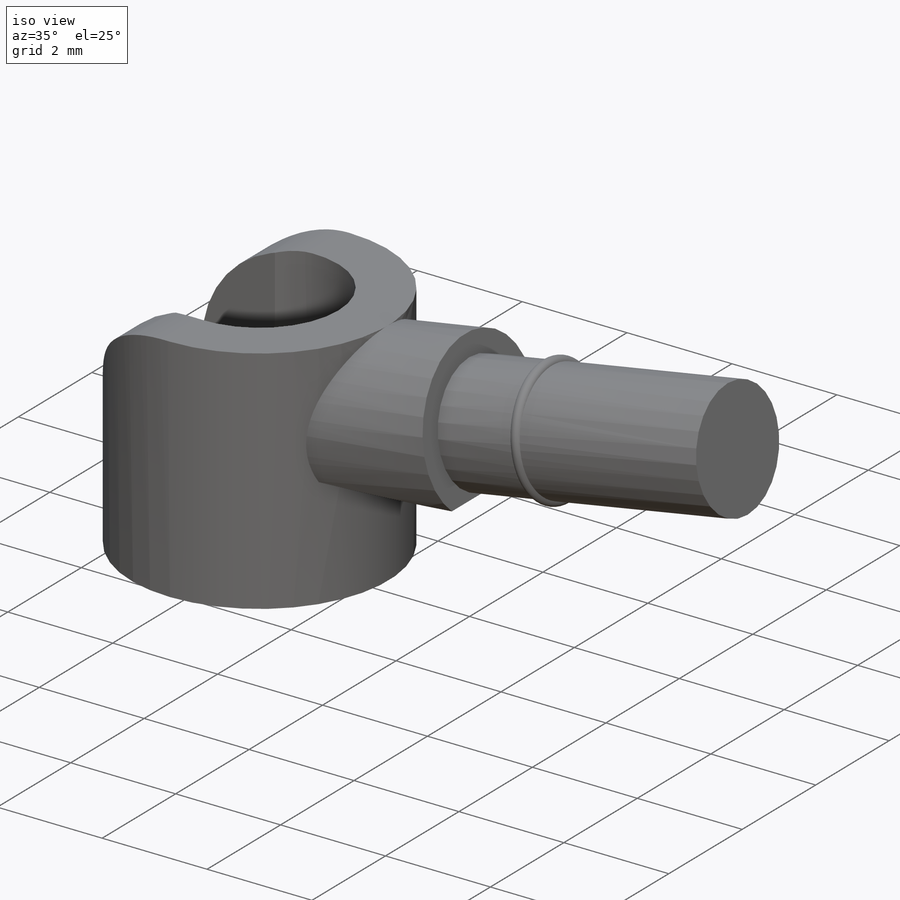
[diagram: iso view]
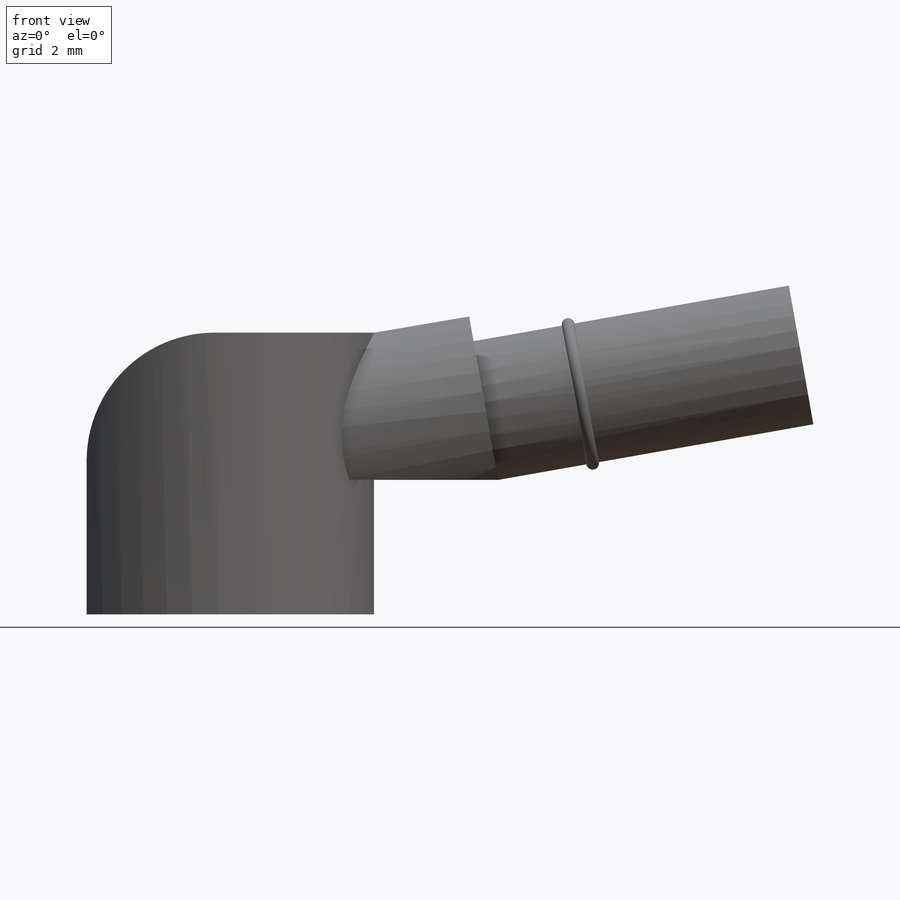
[diagram: front view]
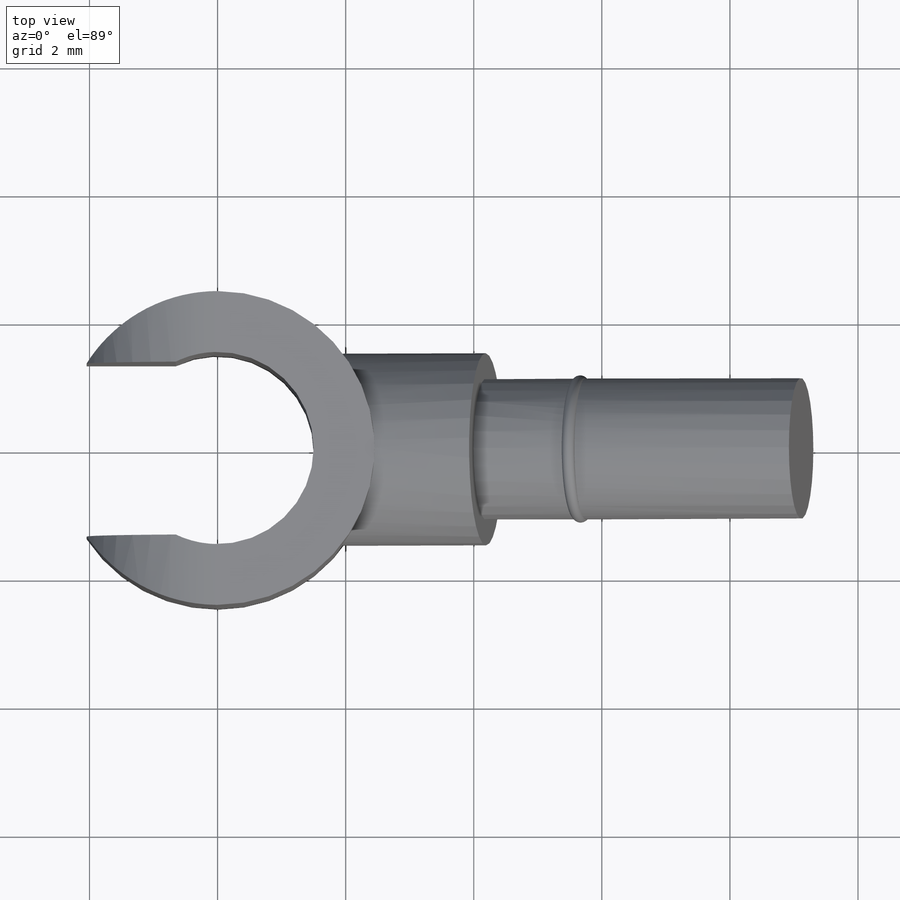
[diagram: top view]
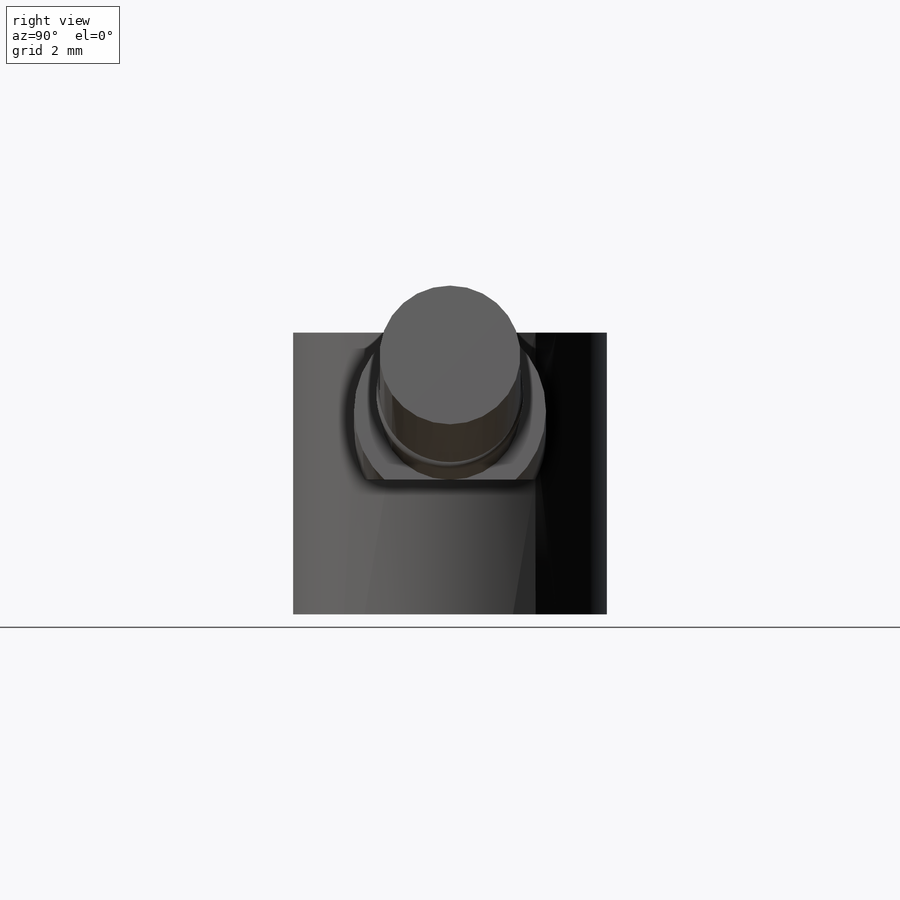
[diagram: right view]
SOLIDWORKS PART (.sldprt)
format: sldprt  version: not decoded by parser v0  size: 352,256 bytes
history: native  units: mm
features: sketch x11, cut_extrude x4, plane x4, extrude x3, material x1, sweep x1 (+11 scaffold rows collapsed)
feature tree (35):
  scaffold x11  (default folders/planes/origin — collapsed)
  material  "Material <not specified>"
  sketch  "Sketch1"  dims[D1=4.9mm]
  extrude  "Boss-Extrude1"  Depth=4.4mm
  sketch  "Sketch2"  dims[D1=3.0mm]
  sketch  "Sketch4"  dims[D1=1.35mm]
  cut_extrude  "Cut-Extrude4"  [1 undecoded]
  cut_extrude  "Cut-Extrude6"  [1 undecoded]
  sketch  "Sketch11"  dims[D1=~2.012483mm]
  cut_extrude  "Cut-Extrude7"  [1 undecoded]
  sketch  "Sketch13"  dims[c1.D1=4.84mm c2.D1=10.0deg]
  sketch  "Sketch14"  dims[c1.D1=~2.836819mm c1.D2=90.0deg c2.D1=~1.821168mm c2.D2=~1.821168mm]
  plane  "Plane1"
  plane  "Plane2"
  sketch  "Sketch15"  dims[D1=3.0mm]
  extrude  "Boss-Extrude2"  Depth=1.5mm
  sketch  "Sketch17"  dims[D1=~0.709784mm]
  extrude  "Boss-Extrude3"  Depth=5mm
  plane  "Plane3"  Offset=3mm
  sketch  "Sketch20"  dims[D1=1.15mm D2=1.15mm]
  plane  "Plane6"  Offset=4.5mm
  sketch  "Sketch22"
  cut_extrude  "Cut-Extrude8"  [1 undecoded]
  sketch  "Sketch23"  dims[D1=0.2mm]
  sweep  "Sweep1"
decode coverage: 13 of 19 modeling features carry decoded parameters
note: ~ marks probable driven/reference dimensions
note: 4 parameter values undecoded
summary: no parameter record found for 4 features
note: suppression state not decoded; provenance and decode notes live in map.json
